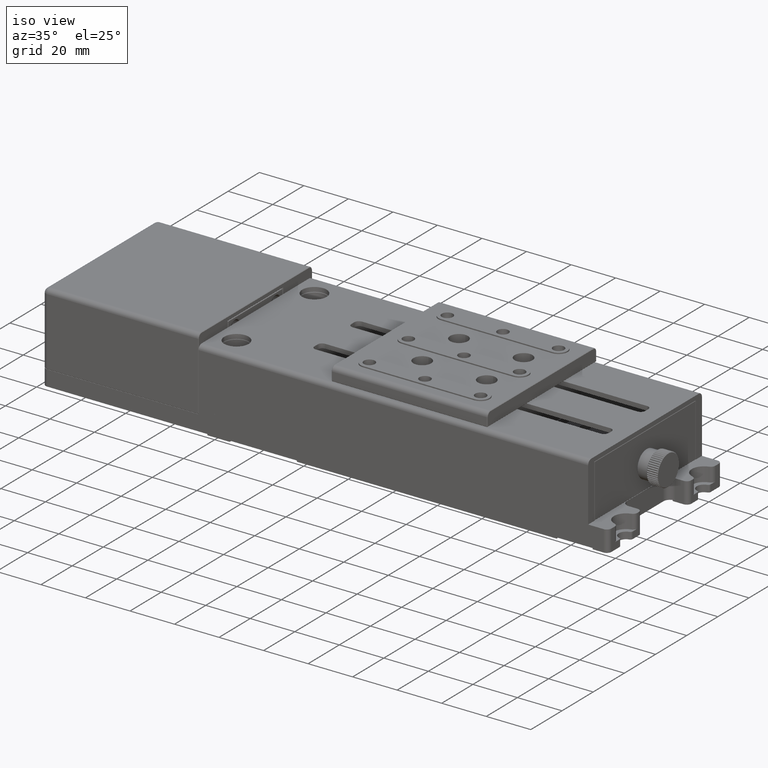
[diagram: clean part render]
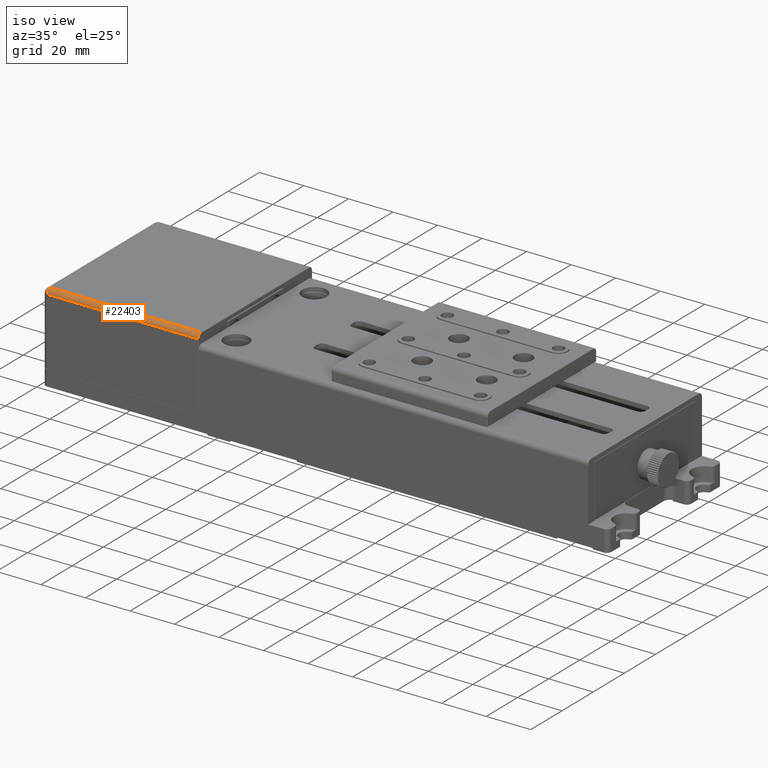
[diagram: same view with one face highlighted and labeled with its STEP entity id]
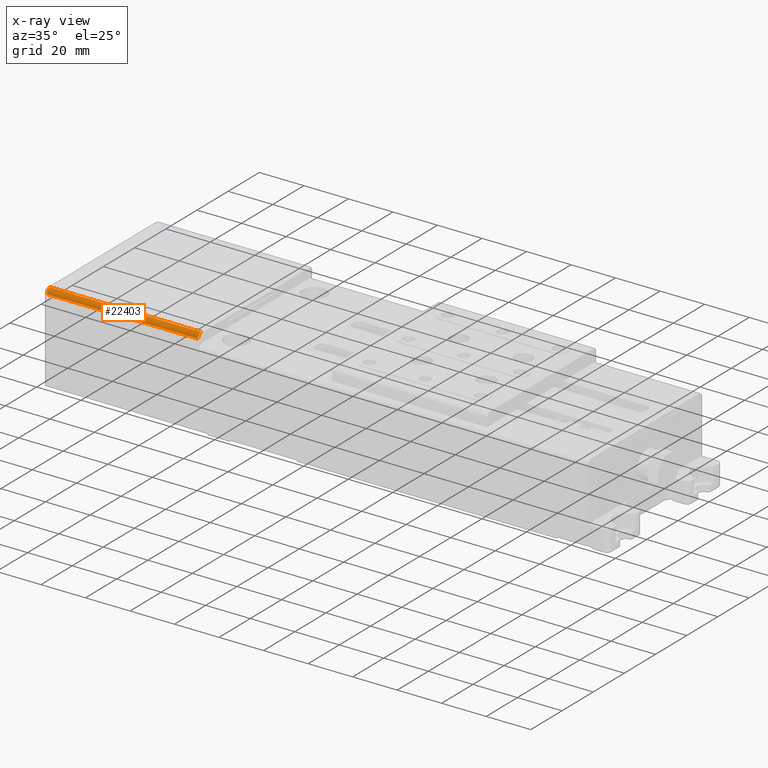
[diagram: x-ray of the same camera — body ghosted, the highlighted face saturated]
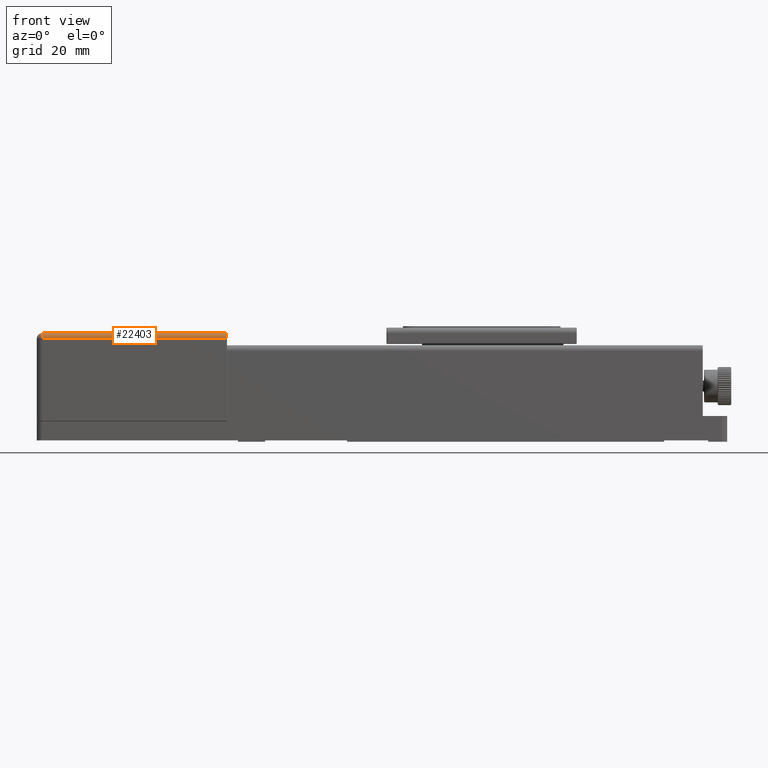
[diagram: same view with one face highlighted and labeled with its STEP entity id]
A machine part, iso view. The second image highlights one B-rep face of the part: STEP entity #22403.
The next image is the same camera in x-ray: the body ghosted, the highlighted face saturated — about 0% of this face is hidden behind the body in this view.
A second angle (front view) of the same face is appended — the face is thin or edge-on in the first view.
In plain terms, the highlighted cylindrical surface (edge-blend (fillet) strip) has radius 2 mm, axis along (-1, 0, 0).
Its self-contained STEP definition (entity closure, byte-faithful):
#4536 = CARTESIAN_POINT ( 'NONE',  ( -83.42525998140240517, -45.46919745025279980, 32.50000000000000000 ) ) ;
#9777 = DIRECTION ( 'NONE',  ( 0.000000000000000000, 1.000000000000000000, 0.000000000000000000 ) ) ;
#10073 = DIRECTION ( 'NONE',  ( -1.000000000000000000, 0.000000000000000000, 0.000000000000000000 ) ) ;
#11355 = CARTESIAN_POINT ( 'NONE',  ( -83.62525998140229433, -43.46919745025279980, 34.50000000000000000 ) ) ;
#18101 = EDGE_CURVE ( 'NONE', #51623, #57123, #61497, .T. ) ;
#19124 = CARTESIAN_POINT ( 'NONE',  ( -83.42525998140240517, -43.46919745025279980, 32.50000000000000000 ) ) ;
#19267 = ORIENTED_EDGE ( 'NONE', *, *, #18101, .T. ) ;
#20195 = CARTESIAN_POINT ( 'NONE',  ( -151.4252599814024904, -43.46919745025275006, 32.50000000000000000 ) ) ;
#21534 = ORIENTED_EDGE ( 'NONE', *, *, #65570, .T. ) ;
#22403 = ADVANCED_FACE ( 'NONE', ( #45815 ), #25009, .T. ) ;
#25009 = CYLINDRICAL_SURFACE ( 'NONE', #38656, 2.000000000000001776 ) ;
#25463 = CIRCLE ( 'NONE', #49985, 2.000000000000001776 ) ;
#29513 = CARTESIAN_POINT ( 'NONE',  ( -83.62525998140229433, -45.46919745025279980, 32.50000000000000000 ) ) ;
#32288 = CARTESIAN_POINT ( 'NONE',  ( -151.4252599814024904, -45.46919745025279980, 32.50000000000000000 ) ) ;
#33007 = VERTEX_POINT ( 'NONE', #11355 ) ;
#34111 = LINE ( 'NONE', #51420, #50953 ) ;
#37111 = DIRECTION ( 'NONE',  ( 0.000000000000000000, 0.000000000000000000, 1.000000000000000000 ) ) ;
#38656 = AXIS2_PLACEMENT_3D ( 'NONE', #19124, #10073, #40268 ) ;
#39546 = EDGE_CURVE ( 'NONE', #43813, #57123, #52062, .T. ) ;
#40268 = DIRECTION ( 'NONE',  ( 0.000000000000000000, 1.000000000000000000, 0.000000000000000000 ) ) ;
#41474 = VECTOR ( 'NONE', #42006, 1000.000000000000000 ) ;
#42006 = DIRECTION ( 'NONE',  ( -1.000000000000000000, 3.445092848397665055E-16, 0.000000000000000000 ) ) ;
#43813 = VERTEX_POINT ( 'NONE', #29513 ) ;
#45815 = FACE_OUTER_BOUND ( 'NONE', #61823, .T. ) ;
#46702 = EDGE_CURVE ( 'NONE', #51623, #33007, #34111, .T. ) ;
#47523 = DIRECTION ( 'NONE',  ( -1.000000000000000000, 2.220446049250315053E-16, 0.000000000000000000 ) ) ;
#48158 = AXIS2_PLACEMENT_3D ( 'NONE', #20195, #63196, #9777 ) ;
#49985 = AXIS2_PLACEMENT_3D ( 'NONE', #68021, #47523, #37111 ) ;
#50953 = VECTOR ( 'NONE', #56298, 1000.000000000000000 ) ;
#51420 = CARTESIAN_POINT ( 'NONE',  ( -83.42525998140240517, -43.46919745025279980, 34.50000000000000000 ) ) ;
#51623 = VERTEX_POINT ( 'NONE', #65084 ) ;
#52062 = LINE ( 'NONE', #4536, #41474 ) ;
#52571 = ORIENTED_EDGE ( 'NONE', *, *, #46702, .F. ) ;
#56298 = DIRECTION ( 'NONE',  ( 1.000000000000000000, -3.445092848397665055E-16, 0.000000000000000000 ) ) ;
#57123 = VERTEX_POINT ( 'NONE', #32288 ) ;
#61497 = CIRCLE ( 'NONE', #48158, 2.000000000000001776 ) ;
#61823 = EDGE_LOOP ( 'NONE', ( #64398, #21534, #52571, #19267 ) ) ;
#63196 = DIRECTION ( 'NONE',  ( 1.000000000000000000, 0.000000000000000000, 0.000000000000000000 ) ) ;
#64398 = ORIENTED_EDGE ( 'NONE', *, *, #39546, .F. ) ;
#65084 = CARTESIAN_POINT ( 'NONE',  ( -151.4252599814024904, -43.46919745025275006, 34.50000000000000000 ) ) ;
#65570 = EDGE_CURVE ( 'NONE', #43813, #33007, #25463, .T. ) ;
#68021 = CARTESIAN_POINT ( 'NONE',  ( -83.62525998140229433, -43.46919745025279980, 32.50000000000000000 ) ) ;